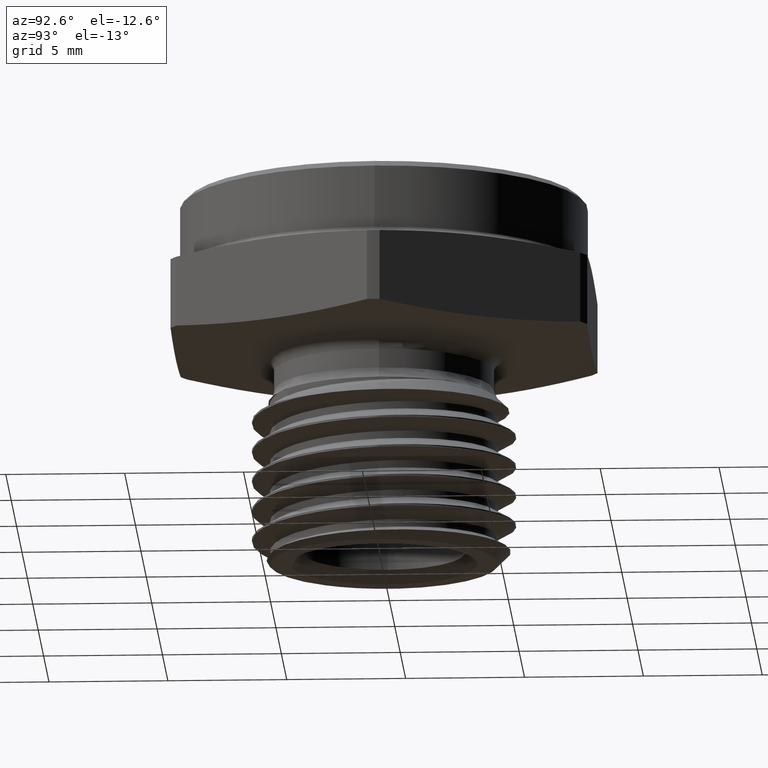
[diagram: clean part render]
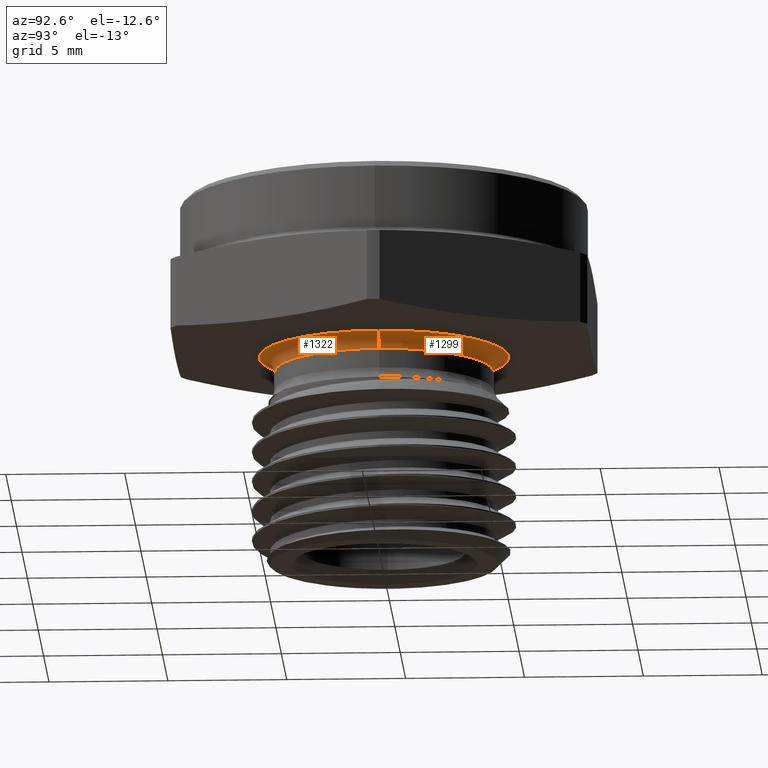
[diagram: same view with one multi-face feature highlighted, each face labeled with its STEP entity id]
A machine part, auxiliary view. The highlighted faces form ONE feature: a constant-radius fillet chain: 2 tangent blend faces with common blend radius 0.635 mm. The faces share edges in the B-rep.
Their STEP definitions:
[1] entity #1299 (Torus):
#153 = EDGE_CURVE ( 'NONE', #352, #361, #2745, .T. ) ;
#202 = EDGE_CURVE ( 'NONE', #352, #369, #2788, .T. ) ;
#206 = EDGE_CURVE ( 'NONE', #361, #378, #2791, .T. ) ;
#248 = EDGE_CURVE ( 'NONE', #369, #378, #2843, .T. ) ;
#352 = VERTEX_POINT ( 'NONE', #996 ) ;
#361 = VERTEX_POINT ( 'NONE', #1025 ) ;
#369 = VERTEX_POINT ( 'NONE', #1032 ) ;
#378 = VERTEX_POINT ( 'NONE', #1041 ) ;
#387 = AXIS2_PLACEMENT_3D ( 'NONE', #2404, #2403, #2402 ) ;
#406 = AXIS2_PLACEMENT_3D ( 'NONE', #652, #653, #654 ) ;
#408 = AXIS2_PLACEMENT_3D ( 'NONE', #676, #677, #678 ) ;
#429 = AXIS2_PLACEMENT_3D ( 'NONE', #924, #925, #926 ) ;
#472 = AXIS2_PLACEMENT_3D ( 'NONE', #1761, #1759, #1763 ) ;
#652 = CARTESIAN_POINT ( 'NONE',  ( 0.2070000000000000200, 0.0000000000000000000, -0.02500000000000004600 ) ) ;
#653 = DIRECTION ( 'NONE',  ( 0.0000000000000000000, -1.000000000000000000, 0.0000000000000000000 ) ) ;
#654 = DIRECTION ( 'NONE',  ( 0.0000000000000000000, 0.0000000000000000000, -1.000000000000000000 ) ) ;
#676 = CARTESIAN_POINT ( 'NONE',  ( -0.2070000000000000200, 2.535018874235021400E-017, -0.02500000000000004600 ) ) ;
#677 = DIRECTION ( 'NONE',  ( 1.224646799147353200E-016, 1.000000000000000000, 0.0000000000000000000 ) ) ;
#678 = DIRECTION ( 'NONE',  ( -1.000000000000000000, 1.224646799147353500E-016, 0.0000000000000000000 ) ) ;
#924 = CARTESIAN_POINT ( 'NONE',  ( 0.0000000000000000000, 0.0000000000000000000, -0.02500000000000005000 ) ) ;
#925 = DIRECTION ( 'NONE',  ( -0.0000000000000000000, -0.0000000000000000000, 1.000000000000000000 ) ) ;
#926 = DIRECTION ( 'NONE',  ( 1.000000000000000000, 0.0000000000000000000, 0.0000000000000000000 ) ) ;
#996 = CARTESIAN_POINT ( 'NONE',  ( 0.2070000000000000200, 0.0000000000000000000, -4.055086865595390600E-017 ) ) ;
#1025 = CARTESIAN_POINT ( 'NONE',  ( -0.2070000000000000200, 2.535018874235021400E-017, -4.055086865595390600E-017 ) ) ;
#1032 = CARTESIAN_POINT ( 'NONE',  ( 0.1820000000000000000, 0.0000000000000000000, -0.02500000000000005000 ) ) ;
#1041 = CARTESIAN_POINT ( 'NONE',  ( -0.1820000000000000000, 2.228857174448182800E-017, -0.02500000000000005000 ) ) ;
#1299 = ADVANCED_FACE ( 'NONE', ( #2925 ), #2924, .F. ) ;
#1759 = DIRECTION ( 'NONE',  ( -0.0000000000000000000, -0.0000000000000000000, 1.000000000000000000 ) ) ;
#1761 = CARTESIAN_POINT ( 'NONE',  ( 0.0000000000000000000, 0.0000000000000000000, -0.02500000000000004600 ) ) ;
#1763 = DIRECTION ( 'NONE',  ( 1.000000000000000000, 0.0000000000000000000, 0.0000000000000000000 ) ) ;
#2402 = DIRECTION ( 'NONE',  ( 1.000000000000000000, 0.0000000000000000000, 0.0000000000000000000 ) ) ;
#2403 = DIRECTION ( 'NONE',  ( -0.0000000000000000000, -0.0000000000000000000, 1.000000000000000000 ) ) ;
#2404 = CARTESIAN_POINT ( 'NONE',  ( 0.0000000000000000000, 0.0000000000000000000, -4.268512490100411300E-017 ) ) ;
#2627 = ORIENTED_EDGE ( 'NONE', *, *, #206, .F. ) ;
#2628 = ORIENTED_EDGE ( 'NONE', *, *, #153, .F. ) ;
#2629 = ORIENTED_EDGE ( 'NONE', *, *, #202, .T. ) ;
#2630 = ORIENTED_EDGE ( 'NONE', *, *, #248, .T. ) ;
#2670 = EDGE_LOOP ( 'NONE', ( #2627, #2628, #2629, #2630 ) ) ;
#2745 = CIRCLE ( 'NONE', #387, 0.2070000000000000200 ) ;
#2788 = CIRCLE ( 'NONE', #406, 0.02500000000000000100 ) ;
#2791 = CIRCLE ( 'NONE', #408, 0.02500000000000000500 ) ;
#2843 = CIRCLE ( 'NONE', #429, 0.1820000000000000000 ) ;
#2924 = TOROIDAL_SURFACE ( 'NONE', #472, 0.2070000000000000200, 0.02500000000000000500 ) ;
#2925 = FACE_OUTER_BOUND ( 'NONE', #2670, .T. ) ;
[2] entity #1322 (Torus):
#79 = ORIENTED_EDGE ( 'NONE', *, *, #206, .T. ) ;
#80 = ORIENTED_EDGE ( 'NONE', *, *, #204, .T. ) ;
#81 = ORIENTED_EDGE ( 'NONE', *, *, #202, .F. ) ;
#202 = EDGE_CURVE ( 'NONE', #352, #369, #2788, .T. ) ;
#204 = EDGE_CURVE ( 'NONE', #378, #369, #2793, .T. ) ;
#206 = EDGE_CURVE ( 'NONE', #361, #378, #2791, .T. ) ;
#208 = EDGE_CURVE ( 'NONE', #361, #352, #2794, .T. ) ;
#352 = VERTEX_POINT ( 'NONE', #996 ) ;
#361 = VERTEX_POINT ( 'NONE', #1025 ) ;
#369 = VERTEX_POINT ( 'NONE', #1032 ) ;
#378 = VERTEX_POINT ( 'NONE', #1041 ) ;
#406 = AXIS2_PLACEMENT_3D ( 'NONE', #652, #653, #654 ) ;
#407 = AXIS2_PLACEMENT_3D ( 'NONE', #671, #672, #673 ) ;
#408 = AXIS2_PLACEMENT_3D ( 'NONE', #676, #677, #678 ) ;
#409 = AXIS2_PLACEMENT_3D ( 'NONE', #681, #682, #683 ) ;
#492 = AXIS2_PLACEMENT_3D ( 'NONE', #1513, #1512, #1515 ) ;
#652 = CARTESIAN_POINT ( 'NONE',  ( 0.2070000000000000200, 0.0000000000000000000, -0.02500000000000004600 ) ) ;
#653 = DIRECTION ( 'NONE',  ( 0.0000000000000000000, -1.000000000000000000, 0.0000000000000000000 ) ) ;
#654 = DIRECTION ( 'NONE',  ( 0.0000000000000000000, 0.0000000000000000000, -1.000000000000000000 ) ) ;
#671 = CARTESIAN_POINT ( 'NONE',  ( 0.0000000000000000000, 0.0000000000000000000, -0.02500000000000005000 ) ) ;
#672 = DIRECTION ( 'NONE',  ( -0.0000000000000000000, -0.0000000000000000000, 1.000000000000000000 ) ) ;
#673 = DIRECTION ( 'NONE',  ( 1.000000000000000000, 0.0000000000000000000, 0.0000000000000000000 ) ) ;
#676 = CARTESIAN_POINT ( 'NONE',  ( -0.2070000000000000200, 2.535018874235021400E-017, -0.02500000000000004600 ) ) ;
#677 = DIRECTION ( 'NONE',  ( 1.224646799147353200E-016, 1.000000000000000000, 0.0000000000000000000 ) ) ;
#678 = DIRECTION ( 'NONE',  ( -1.000000000000000000, 1.224646799147353500E-016, 0.0000000000000000000 ) ) ;
#681 = CARTESIAN_POINT ( 'NONE',  ( 0.0000000000000000000, 0.0000000000000000000, -4.268512490100411300E-017 ) ) ;
#682 = DIRECTION ( 'NONE',  ( -0.0000000000000000000, -0.0000000000000000000, 1.000000000000000000 ) ) ;
#683 = DIRECTION ( 'NONE',  ( 1.000000000000000000, 0.0000000000000000000, 0.0000000000000000000 ) ) ;
#996 = CARTESIAN_POINT ( 'NONE',  ( 0.2070000000000000200, 0.0000000000000000000, -4.055086865595390600E-017 ) ) ;
#1025 = CARTESIAN_POINT ( 'NONE',  ( -0.2070000000000000200, 2.535018874235021400E-017, -4.055086865595390600E-017 ) ) ;
#1032 = CARTESIAN_POINT ( 'NONE',  ( 0.1820000000000000000, 0.0000000000000000000, -0.02500000000000005000 ) ) ;
#1041 = CARTESIAN_POINT ( 'NONE',  ( -0.1820000000000000000, 2.228857174448182800E-017, -0.02500000000000005000 ) ) ;
#1322 = ADVANCED_FACE ( 'NONE', ( #2961 ), #2963, .F. ) ;
#1512 = DIRECTION ( 'NONE',  ( -0.0000000000000000000, -0.0000000000000000000, 1.000000000000000000 ) ) ;
#1513 = CARTESIAN_POINT ( 'NONE',  ( 0.0000000000000000000, 0.0000000000000000000, -0.02500000000000004600 ) ) ;
#1515 = DIRECTION ( 'NONE',  ( 1.000000000000000000, 0.0000000000000000000, 0.0000000000000000000 ) ) ;
#2622 = ORIENTED_EDGE ( 'NONE', *, *, #208, .F. ) ;
#2710 = EDGE_LOOP ( 'NONE', ( #2622, #79, #80, #81 ) ) ;
#2788 = CIRCLE ( 'NONE', #406, 0.02500000000000000100 ) ;
#2791 = CIRCLE ( 'NONE', #408, 0.02500000000000000500 ) ;
#2793 = CIRCLE ( 'NONE', #407, 0.1820000000000000000 ) ;
#2794 = CIRCLE ( 'NONE', #409, 0.2070000000000000200 ) ;
#2961 = FACE_OUTER_BOUND ( 'NONE', #2710, .T. ) ;
#2963 = TOROIDAL_SURFACE ( 'NONE', #492, 0.2070000000000000200, 0.02500000000000000500 ) ;